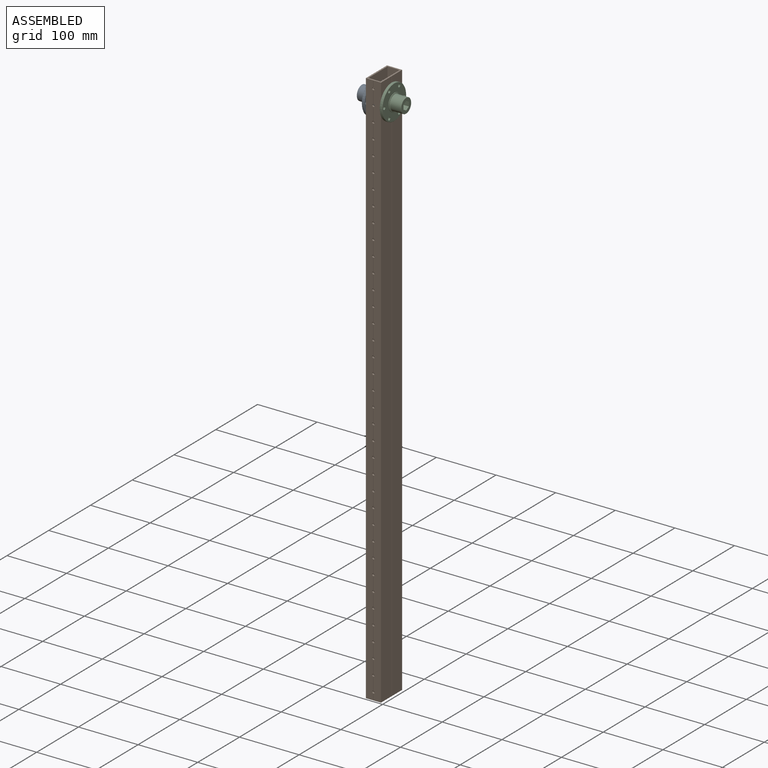
[diagram: assembled view]
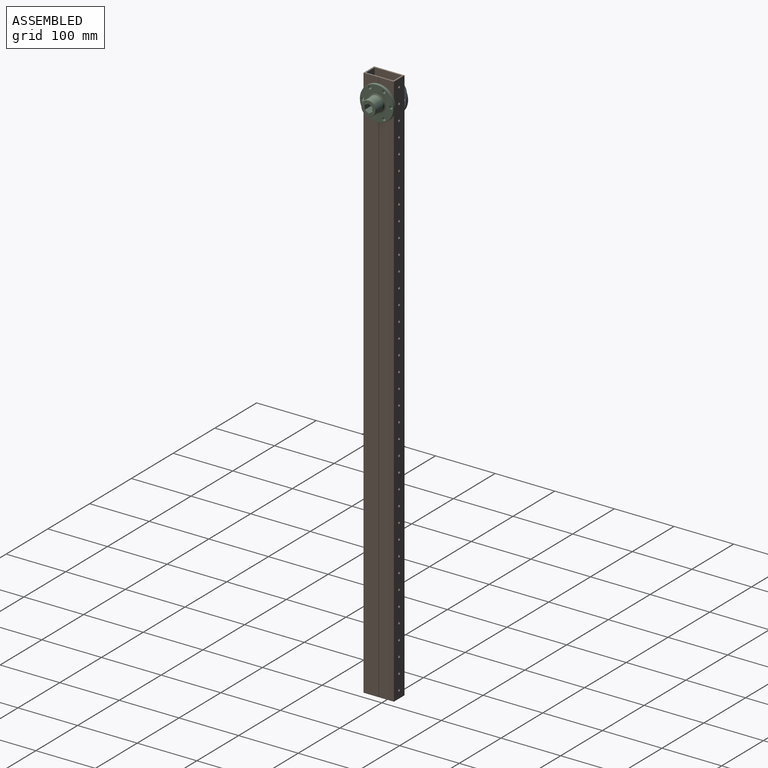
[diagram: assembled view, second angle]
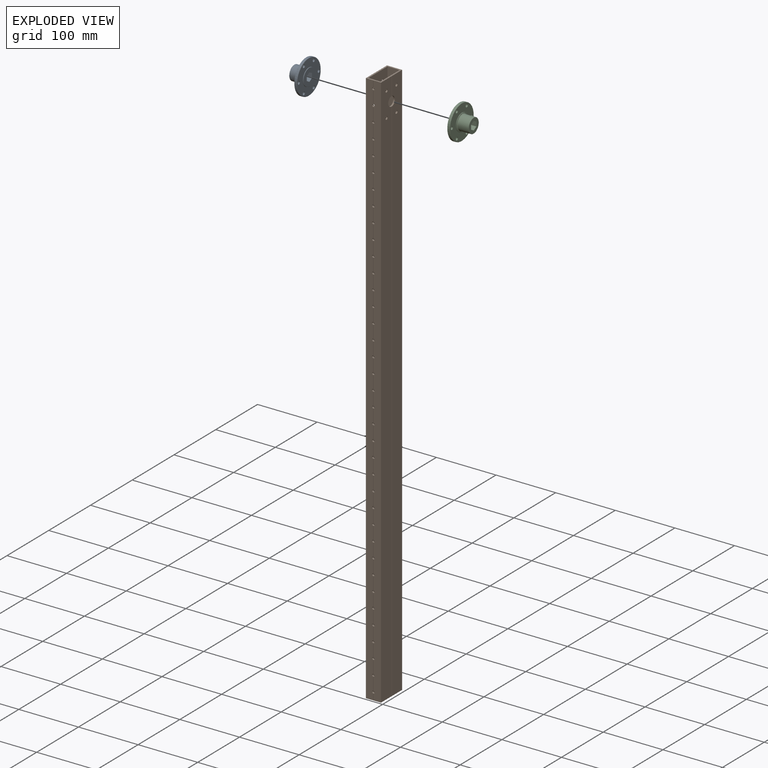
[diagram: exploded view]
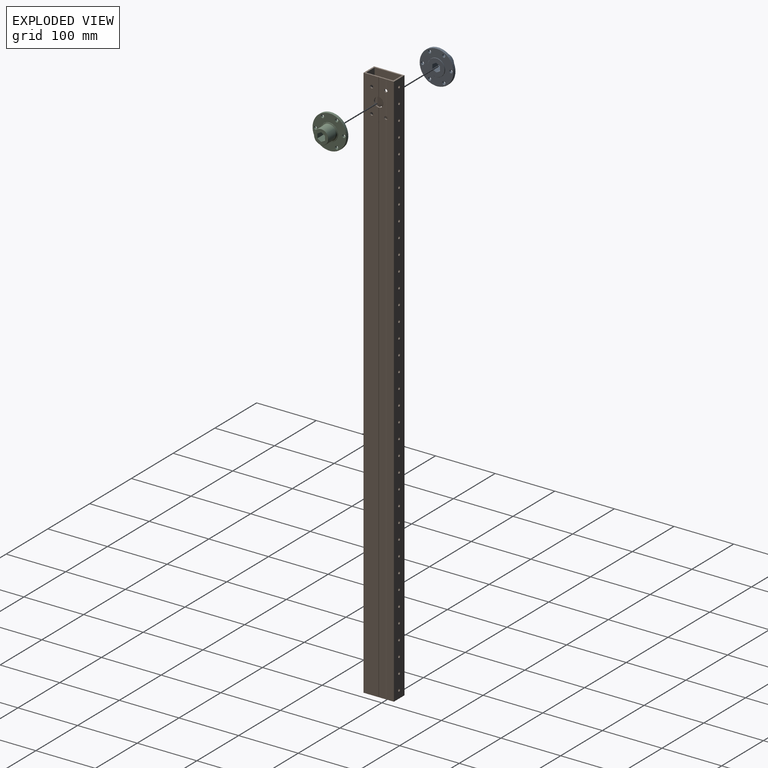
[diagram: exploded view, second angle]
ASSEMBLY  parts=3 mates=2
PART A: 27 faces, bbox 25.4x57.2x57.2 mm
  f0: cone r=11.91mm half-angle=45deg, axis (-1,0,0), area 27.2mm2, adj f8,f18
  f1: cone r=28.57mm half-angle=45deg, axis (-1,0,0), area 64.2mm2, adj f15,f25
  f2: cone r=28.32mm half-angle=45deg, axis (1,0,0), area 64.2mm2, adj f15,f26
  f3: cone r=14.29mm half-angle=45deg, axis (-1,0,0), area 32mm2, adj f7,f17
  f4: cone r=14.03mm half-angle=45deg, axis (1,0,0), area 32mm2, adj f6,f16
  f5: cone r=12.17mm half-angle=45deg, axis (-1,0,0), area 90.8mm2, adj f8,f17
  f6: cylinder r=14.29mm len=28.58mm, axis (1,0,0), area 57mm2, adj f4,f26
  f7: cylinder r=14.29mm len=28.58mm, axis (1,0,0), area 57mm2, adj f3,f25
  f8: cylinder r=12.17mm len=24.33mm, axis (-1,0,0), area 1374.7mm2, adj f0,f5
  f9: cylinder r=2.59mm len=5.18mm, axis (1,0,0), area 74.4mm2, adj f25,f26
  f10: cylinder r=2.59mm len=5.18mm, axis (1,0,0), area 74.4mm2, adj f25,f26
  f11: cylinder r=2.59mm len=5.18mm, axis (1,0,0), area 74.4mm2, adj f25,f26
  f12: cylinder r=2.59mm len=5.18mm, axis (1,0,0), area 74.4mm2, adj f25,f26
  f13: cylinder r=2.59mm len=5.18mm, axis (1,0,0), area 74.4mm2, adj f25,f26
  f14: cylinder r=2.59mm len=5.18mm, axis (1,0,0), area 74.4mm2, adj f25,f26
  f15: cylinder r=28.57mm len=57.15mm, axis (-1,0,0), area 729.7mm2, adj f1,f2
  f16: plane 28.07x28.07mm, normal (-1,0,0), area 477.9mm2, adj f4,f19,f20,f21,f22,f23,f24
  f17: plane 28.07x28.07mm, normal (1,0,0), area 89.5mm2, adj f3,f5
  f18: plane 23.83x23.83mm, normal (1,0,0), area 305mm2, adj f0,f19,f20,f21,f22,f23,f24
  f19: plane 25.4x6.38mm, normal (0,0.5,0.87), area 187mm2, adj f16,f18,f20,f24
  f20: plane 25.4x7.36mm, normal (0,1,0), area 187mm2, adj f16,f18,f19,f21
  f21: plane 25.4x6.38mm, normal (0,0.5,-0.87), area 187mm2, adj f16,f18,f20,f22
  f22: plane 25.4x6.38mm, normal (0,-0.5,-0.87), area 187mm2, adj f16,f18,f21,f23
  f23: plane 25.4x7.36mm, normal (0,-1,0), area 187mm2, adj f16,f18,f22,f24
  f24: plane 25.4x6.38mm, normal (0,-0.5,0.87), area 187mm2, adj f16,f18,f19,f23
  f25: plane 56.64x56.64mm, normal (1,0,0), area 1752mm2, adj f1,f7,f9,f10,f11,f12,f13,f14
  f26: plane 56.64x56.64mm, normal (-1,0,0), area 1752mm2, adj f2,f6,f9,f10,f11,f12,f13,f14
PART B: 290 faces, bbox 25.4x50.8x939.8 mm
  f0: plane 878.61x0.08mm, normal (-0.71,-0.71,0), area 94.7mm2, adj f25,f52,f281,f285
  f1: plane 15.01x0.08mm, normal (-0.71,0.71,0), area 1.6mm2, adj f24,f55,f278,f282
  f2: plane 939.8x12.55mm, normal (1,0,0), area 11666.1mm2, adj f8,f9,f20,f21,f47,f278,f280,f281
  f3: plane 939.8x12.55mm, normal (1,0,0), area 11666.1mm2, adj f10,f11,f22,f23,f48,f278,f280,f281
  f4: plane 939.8x12.62mm, normal (1,0,0), area 11851.6mm2, adj f6,f7,f38,f46,f278,f281,f288,f289
  f5: plane 939.8x12.62mm, normal (1,0,0), area 11851.6mm2, adj f12,f13,f36,f49,f278,f281,f286,f287
  f6: plane 878.64x0.08mm, normal (0.71,-0.71,0), area 94.7mm2, adj f4,f47,f281,f289
  f7: plane 36.36x0.08mm, normal (0.71,-0.71,0), area 3.9mm2, adj f4,f8,f288,f289
  f8: plane 36.31x0.08mm, normal (0.71,0.71,0), area 3.9mm2, adj f2,f7,f288,f289
  f9: plane 15.01x0.08mm, normal (0.71,0.71,0), area 1.6mm2, adj f2,f46,f278,f288
  f10: plane 36.31x0.08mm, normal (0.71,-0.71,0), area 3.9mm2, adj f3,f13,f286,f287
  f11: plane 878.61x0.08mm, normal (0.71,-0.71,0), area 94.7mm2, adj f3,f49,f281,f286
  f12: plane 15.04x0.08mm, normal (0.71,0.71,0), area 1.6mm2, adj f5,f48,f278,f287
  f13: plane 36.36x0.08mm, normal (0.71,0.71,0), area 3.9mm2, adj f5,f10,f286,f287
  f14: plane 15.04x0.08mm, normal (-0.71,0.71,0), area 1.6mm2, adj f33,f53,f278,f284
  f15: plane 36.36x0.08mm, normal (-0.71,0.71,0), area 3.9mm2, adj f16,f30,f33,f284,f285
  f16: plane 18.16x0.08mm, normal (-0.71,-0.71,0), area 1.9mm2, adj f15,f34,f279,f284
  f17: plane 18.16x0.08mm, normal (-0.71,0.71,0), area 1.9mm2, adj f19,f32,f279,f283
  f18: plane 878.64x0.08mm, normal (-0.71,-0.71,0), area 94.7mm2, adj f35,f54,f281,f283
  f19: plane 36.36x0.08mm, normal (-0.71,-0.71,0), area 3.9mm2, adj f17,f31,f35,f282,f283
  f20: plane 30.16x0.08mm, normal (0.71,-0.71,0), area 3.3mm2, adj f2,f23,f278,f280
  f21: plane 893.76x0.08mm, normal (0.71,-0.71,0), area 96.3mm2, adj f2,f22,f280,f281
  f22: plane 893.76x0.08mm, normal (0.71,0.71,0), area 96.3mm2, adj f3,f21,f280,f281
  f23: plane 30.16x0.08mm, normal (0.71,0.71,0), area 3.3mm2, adj f3,f20,f278,f280
  f24: plane 36.71x12.55mm, normal (-1,0,0), area 338.2mm2, adj f1,f29,f31,f278,f279,f282
  f25: plane 900.31x12.55mm, normal (-1,0,0), area 11174.3mm2, adj f0,f27,f30,f279,f281,f285
  f26: plane 25.4x0.08mm, normal (-0.71,0.71,0), area 2.7mm2, adj f29,f34,f278,f279
  f27: plane 889x0.08mm, normal (-0.71,0.71,0), area 95.8mm2, adj f25,f28,f279,f281
  f28: plane 889x0.08mm, normal (-0.71,-0.71,0), area 95.8mm2, adj f27,f32,f279,f281
  f29: plane 25.4x0.08mm, normal (-0.71,-0.71,0), area 2.7mm2, adj f24,f26,f278,f279
  f30: plane 18.16x0.08mm, normal (-0.71,-0.71,0), area 1.9mm2, adj f15,f25,f279,f285
  f31: plane 18.16x0.08mm, normal (-0.71,0.71,0), area 1.9mm2, adj f19,f24,f279,f282
  f32: plane 900.31x12.55mm, normal (-1,0,0), area 11174.3mm2, adj f17,f28,f54,f279,f281,f283
  f33: plane 939.8x12.62mm, normal (-1,0,0), area 11851.6mm2, adj f14,f15,f39,f52,f278,f281,f284,f285
  f34: plane 36.71x12.55mm, normal (-1,0,0), area 338.2mm2, adj f16,f26,f53,f278,f279,f284
  f35: plane 939.8x12.62mm, normal (-1,0,0), area 11851.6mm2, adj f18,f19,f37,f55,f278,f281,f282,f283
  f36: plane 939.8x12.62mm, normal (0,-1,0), area 11626.5mm2, adj f5,f51,f56,f57,f58,f59,f60,f61
  f37: plane 939.8x12.62mm, normal (0,1,0), area 11626.5mm2, adj f35,f45,f93,f94,f95,f96,f97,f98
  f38: plane 939.8x12.62mm, normal (0,1,0), area 11626.5mm2, adj f4,f44,f93,f94,f95,f96,f97,f98
  f39: plane 939.8x12.62mm, normal (0,-1,0), area 11626.5mm2, adj f33,f50,f56,f57,f58,f59,f60,f61
  f40: plane 939.8x45.72mm, normal (-1,0,0), area 42685.4mm2, adj f41,f43,f278,f280,f281,f286,f287,f288
  f41: plane 939.8x20.32mm, normal (0,-1,0), area 18598.6mm2, adj f40,f42,f93,f94,f95,f96,f97,f98
  f42: plane 939.8x45.72mm, normal (1,0,0), area 42376.6mm2, adj f41,f43,f278,f279,f281,f282,f283,f284
  f43: plane 939.8x20.32mm, normal (0,1,0), area 18598.6mm2, adj f40,f42,f56,f57,f58,f59,f60,f61
  f44: plane 10.63x0.08mm, normal (-0.71,0.71,0), area 1.1mm2, adj f38,f45,f93,f278
  f45: plane 10.63x0.08mm, normal (0.71,0.71,0), area 1.1mm2, adj f37,f44,f93,f278
  f46: plane 15.04x0.08mm, normal (0.71,-0.71,0), area 1.6mm2, adj f4,f9,f278,f288
  f47: plane 878.61x0.08mm, normal (0.71,0.71,0), area 94.7mm2, adj f2,f6,f281,f289
  f48: plane 15.01x0.08mm, normal (0.71,-0.71,0), area 1.6mm2, adj f3,f12,f278,f287
  f49: plane 878.64x0.08mm, normal (0.71,0.71,0), area 94.7mm2, adj f5,f11,f281,f286
  f50: plane 10.63x0.08mm, normal (0.71,-0.71,0), area 1.1mm2, adj f39,f51,f56,f278
  f51: plane 10.63x0.08mm, normal (-0.71,-0.71,0), area 1.1mm2, adj f36,f50,f56,f278
  f52: plane 878.64x0.08mm, normal (-0.71,0.71,0), area 94.7mm2, adj f0,f33,f281,f285
  f53: plane 15.01x0.08mm, normal (-0.71,-0.71,0), area 1.6mm2, adj f14,f34,f278,f284
  f54: plane 878.61x0.08mm, normal (-0.71,0.71,0), area 94.7mm2, adj f18,f32,f281,f283
  f55: plane 15.04x0.08mm, normal (-0.71,-0.71,0), area 1.6mm2, adj f1,f35,f278,f282
  f56: cylinder r=2.07mm len=4.14mm, axis (0,1,0), area 33mm2, adj f36,f39,f43,f50,f51,f204,f205
  f57: cylinder r=2.07mm len=4.14mm, axis (0,1,0), area 33mm2, adj f36,f39,f43,f204,f205,f206,f207
  f58: cylinder r=2.07mm len=4.14mm, axis (0,1,0), area 33mm2, adj f36,f39,f43,f206,f207,f208,f209
  f59: cylinder r=2.07mm len=4.14mm, axis (0,1,0), area 33mm2, adj f36,f39,f43,f208,f209,f210,f211
  f60: cylinder r=2.07mm len=4.14mm, axis (0,1,0), area 33mm2, adj f36,f39,f43,f210,f211,f212,f213
  f61: cylinder r=2.07mm len=4.14mm, axis (0,1,0), area 33mm2, adj f36,f39,f43,f212,f213,f214,f215
  f62: cylinder r=2.07mm len=4.14mm, axis (0,1,0), area 33mm2, adj f36,f39,f43,f214,f215,f216,f217
  f63: cylinder r=2.07mm len=4.14mm, axis (0,1,0), area 33mm2, adj f36,f39,f43,f216,f217,f218,f219
  f64: cylinder r=2.07mm len=4.14mm, axis (0,1,0), area 33mm2, adj f36,f39,f43,f218,f219,f220,f221
  f65: cylinder r=2.07mm len=4.14mm, axis (0,1,0), area 33mm2, adj f36,f39,f43,f220,f221,f222,f223
  f66: cylinder r=2.07mm len=4.14mm, axis (0,1,0), area 33mm2, adj f36,f39,f43,f222,f223,f224,f225
  f67: cylinder r=2.07mm len=4.14mm, axis (0,1,0), area 33mm2, adj f36,f39,f43,f224,f225,f226,f227
  f68: cylinder r=2.07mm len=4.14mm, axis (0,1,0), area 33mm2, adj f36,f39,f43,f226,f227,f228,f229
  f69: cylinder r=2.07mm len=4.14mm, axis (0,1,0), area 33mm2, adj f36,f39,f43,f228,f229,f230,f231
  f70: cylinder r=2.07mm len=4.14mm, axis (0,1,0), area 33mm2, adj f36,f39,f43,f230,f231,f232,f233
  f71: cylinder r=2.07mm len=4.14mm, axis (0,1,0), area 33mm2, adj f36,f39,f43,f232,f233,f234,f235
  f72: cylinder r=2.07mm len=4.14mm, axis (0,1,0), area 33mm2, adj f36,f39,f43,f234,f235,f236,f237
  f73: cylinder r=2.07mm len=4.14mm, axis (0,1,0), area 33mm2, adj f36,f39,f43,f236,f237,f238,f239
  f74: cylinder r=2.07mm len=4.14mm, axis (0,1,0), area 33mm2, adj f36,f39,f43,f238,f239,f240,f241
  f75: cylinder r=2.07mm len=4.14mm, axis (0,1,0), area 33mm2, adj f36,f39,f43,f240,f241,f242,f243
  f76: cylinder r=2.07mm len=4.14mm, axis (0,1,0), area 33mm2, adj f36,f39,f43,f242,f243,f244,f245
  f77: cylinder r=2.07mm len=4.14mm, axis (0,1,0), area 33mm2, adj f36,f39,f43,f244,f245,f246,f247
  f78: cylinder r=2.07mm len=4.14mm, axis (0,1,0), area 33mm2, adj f36,f39,f43,f246,f247,f248,f249
  f79: cylinder r=2.07mm len=4.14mm, axis (0,1,0), area 33mm2, adj f36,f39,f43,f248,f249,f250,f251
  f80: cylinder r=2.07mm len=4.14mm, axis (0,1,0), area 33mm2, adj f36,f39,f43,f250,f251,f252,f253
  f81: cylinder r=2.07mm len=4.14mm, axis (0,1,0), area 33mm2, adj f36,f39,f43,f252,f253,f254,f255
  f82: cylinder r=2.07mm len=4.14mm, axis (0,1,0), area 33mm2, adj f36,f39,f43,f254,f255,f256,f257
  f83: cylinder r=2.07mm len=4.14mm, axis (0,1,0), area 33mm2, adj f36,f39,f43,f256,f257,f258,f259
  f84: cylinder r=2.07mm len=4.14mm, axis (0,1,0), area 33mm2, adj f36,f39,f43,f258,f259,f260,f261
  f85: cylinder r=2.07mm len=4.14mm, axis (0,1,0), area 33mm2, adj f36,f39,f43,f260,f261,f262,f263
  f86: cylinder r=2.07mm len=4.14mm, axis (0,1,0), area 33mm2, adj f36,f39,f43,f262,f263,f264,f265
  f87: cylinder r=2.07mm len=4.14mm, axis (0,1,0), area 33mm2, adj f36,f39,f43,f264,f265,f266,f267
  f88: cylinder r=2.07mm len=4.14mm, axis (0,1,0), area 33mm2, adj f36,f39,f43,f266,f267,f268,f269
  f89: cylinder r=2.07mm len=4.14mm, axis (0,1,0), area 33mm2, adj f36,f39,f43,f268,f269,f270,f271
  f90: cylinder r=2.07mm len=4.14mm, axis (0,1,0), area 33mm2, adj f36,f39,f43,f270,f271,f272,f273
  f91: cylinder r=2.07mm len=4.14mm, axis (0,1,0), area 33mm2, adj f36,f39,f43,f272,f273,f274,f275
  f92: cylinder r=2.07mm len=4.14mm, axis (0,1,0), area 33mm2, adj f36,f39,f43,f274,f275,f276,f277
  f93: cylinder r=2.07mm len=4.14mm, axis (0,1,0), area 33mm2, adj f37,f38,f41,f44,f45,f130,f131
  f94: cylinder r=2.07mm len=4.14mm, axis (0,1,0), area 33mm2, adj f37,f38,f41,f130,f131,f132,f133
  f95: cylinder r=2.07mm len=4.14mm, axis (0,1,0), area 33mm2, adj f37,f38,f41,f132,f133,f134,f135
  f96: cylinder r=2.07mm len=4.14mm, axis (0,1,0), area 33mm2, adj f37,f38,f41,f134,f135,f136,f137
  f97: cylinder r=2.07mm len=4.14mm, axis (0,1,0), area 33mm2, adj f37,f38,f41,f136,f137,f138,f139
  f98: cylinder r=2.07mm len=4.14mm, axis (0,1,0), area 33mm2, adj f37,f38,f41,f138,f139,f140,f141
  f99: cylinder r=2.07mm len=4.14mm, axis (0,1,0), area 33mm2, adj f37,f38,f41,f140,f141,f142,f143
  f100: cylinder r=2.07mm len=4.14mm, axis (0,1,0), area 33mm2, adj f37,f38,f41,f142,f143,f144,f145
  f101: cylinder r=2.07mm len=4.14mm, axis (0,1,0), area 33mm2, adj f37,f38,f41,f144,f145,f146,f147
  f102: cylinder r=2.07mm len=4.14mm, axis (0,1,0), area 33mm2, adj f37,f38,f41,f146,f147,f148,f149
  f103: cylinder r=2.07mm len=4.14mm, axis (0,1,0), area 33mm2, adj f37,f38,f41,f148,f149,f150,f151
  f104: cylinder r=2.07mm len=4.14mm, axis (0,1,0), area 33mm2, adj f37,f38,f41,f150,f151,f152,f153
  f105: cylinder r=2.07mm len=4.14mm, axis (0,1,0), area 33mm2, adj f37,f38,f41,f152,f153,f154,f155
  f106: cylinder r=2.07mm len=4.14mm, axis (0,1,0), area 33mm2, adj f37,f38,f41,f154,f155,f156,f157
  f107: cylinder r=2.07mm len=4.14mm, axis (0,1,0), area 33mm2, adj f37,f38,f41,f156,f157,f158,f159
  f108: cylinder r=2.07mm len=4.14mm, axis (0,1,0), area 33mm2, adj f37,f38,f41,f158,f159,f160,f161
  f109: cylinder r=2.07mm len=4.14mm, axis (0,1,0), area 33mm2, adj f37,f38,f41,f160,f161,f162,f163
  f110: cylinder r=2.07mm len=4.14mm, axis (0,1,0), area 33mm2, adj f37,f38,f41,f162,f163,f164,f165
  f111: cylinder r=2.07mm len=4.14mm, axis (0,1,0), area 33mm2, adj f37,f38,f41,f164,f165,f166,f167
  f112: cylinder r=2.07mm len=4.14mm, axis (0,1,0), area 33mm2, adj f37,f38,f41,f166,f167,f168,f169
  f113: cylinder r=2.07mm len=4.14mm, axis (0,1,0), area 33mm2, adj f37,f38,f41,f168,f169,f170,f171
  f114: cylinder r=2.07mm len=4.14mm, axis (0,1,0), area 33mm2, adj f37,f38,f41,f170,f171,f172,f173
  f115: cylinder r=2.07mm len=4.14mm, axis (0,1,0), area 33mm2, adj f37,f38,f41,f172,f173,f174,f175
  f116: cylinder r=2.07mm len=4.14mm, axis (0,1,0), area 33mm2, adj f37,f38,f41,f174,f175,f176,f177
  f117: cylinder r=2.07mm len=4.14mm, axis (0,1,0), area 33mm2, adj f37,f38,f41,f176,f177,f178,f179
  f118: cylinder r=2.07mm len=4.14mm, axis (0,1,0), area 33mm2, adj f37,f38,f41,f178,f179,f180,f181
  f119: cylinder r=2.07mm len=4.14mm, axis (0,1,0), area 33mm2, adj f37,f38,f41,f180,f181,f182,f183
  f120: cylinder r=2.07mm len=4.14mm, axis (0,1,0), area 33mm2, adj f37,f38,f41,f182,f183,f184,f185
  f121: cylinder r=2.07mm len=4.14mm, axis (0,1,0), area 33mm2, adj f37,f38,f41,f184,f185,f186,f187
  f122: cylinder r=2.07mm len=4.14mm, axis (0,1,0), area 33mm2, adj f37,f38,f41,f186,f187,f188,f189
  f123: cylinder r=2.07mm len=4.14mm, axis (0,1,0), area 33mm2, adj f37,f38,f41,f188,f189,f190,f191
  f124: cylinder r=2.07mm len=4.14mm, axis (0,1,0), area 33mm2, adj f37,f38,f41,f190,f191,f192,f193
  f125: cylinder r=2.07mm len=4.14mm, axis (0,1,0), area 33mm2, adj f37,f38,f41,f192,f193,f194,f195
  f126: cylinder r=2.07mm len=4.14mm, axis (0,1,0), area 33mm2, adj f37,f38,f41,f194,f195,f196,f197
  f127: cylinder r=2.07mm len=4.14mm, axis (0,1,0), area 33mm2, adj f37,f38,f41,f196,f197,f198,f199
  f128: cylinder r=2.07mm len=4.14mm, axis (0,1,0), area 33mm2, adj f37,f38,f41,f198,f199,f200,f201
  f129: cylinder r=2.07mm len=4.14mm, axis (0,1,0), area 33mm2, adj f37,f38,f41,f200,f201,f202,f203
  f130: plane 21.26x0.08mm, normal (-0.71,0.71,0), area 2.3mm2, adj f38,f93,f94,f131
  f131: plane 21.26x0.08mm, normal (0.71,0.71,0), area 2.3mm2, adj f37,f93,f94,f130
  f132: plane 21.26x0.08mm, normal (-0.71,0.71,0), area 2.3mm2, adj f38,f94,f95,f133
  f133: plane 21.26x0.08mm, normal (0.71,0.71,0), area 2.3mm2, adj f37,f94,f95,f132
  f134: plane 21.26x0.08mm, normal (-0.71,0.71,0), area 2.3mm2, adj f38,f95,f96,f135
  f135: plane 21.26x0.08mm, normal (0.71,0.71,0), area 2.3mm2, adj f37,f95,f96,f134
  f136: plane 21.26x0.08mm, normal (-0.71,0.71,0), area 2.3mm2, adj f38,f96,f97,f137
  f137: plane 21.26x0.08mm, normal (0.71,0.71,0), area 2.3mm2, adj f37,f96,f97,f136
  f138: plane 21.26x0.08mm, normal (-0.71,0.71,0), area 2.3mm2, adj f38,f97,f98,f139
  f139: plane 21.26x0.08mm, normal (0.71,0.71,0), area 2.3mm2, adj f37,f97,f98,f138
  f140: plane 21.26x0.08mm, normal (-0.71,0.71,0), area 2.3mm2, adj f38,f98,f99,f141
  f141: plane 21.26x0.08mm, normal (0.71,0.71,0), area 2.3mm2, adj f37,f98,f99,f140
  f142: plane 21.26x0.08mm, normal (-0.71,0.71,0), area 2.3mm2, adj f38,f99,f100,f143
  f143: plane 21.26x0.08mm, normal (0.71,0.71,0), area 2.3mm2, adj f37,f99,f100,f142
  f144: plane 21.26x0.08mm, normal (-0.71,0.71,0), area 2.3mm2, adj f38,f100,f101,f145
  f145: plane 21.26x0.08mm, normal (0.71,0.71,0), area 2.3mm2, adj f37,f100,f101,f144
  f146: plane 21.26x0.08mm, normal (-0.71,0.71,0), area 2.3mm2, adj f38,f101,f102,f147
  f147: plane 21.26x0.08mm, normal (0.71,0.71,0), area 2.3mm2, adj f37,f101,f102,f146
  f148: plane 21.26x0.08mm, normal (-0.71,0.71,0), area 2.3mm2, adj f38,f102,f103,f149
  f149: plane 21.26x0.08mm, normal (0.71,0.71,0), area 2.3mm2, adj f37,f102,f103,f148
  f150: plane 21.26x0.08mm, normal (-0.71,0.71,0), area 2.3mm2, adj f38,f103,f104,f151
  f151: plane 21.26x0.08mm, normal (0.71,0.71,0), area 2.3mm2, adj f37,f103,f104,f150
  f152: plane 21.26x0.08mm, normal (-0.71,0.71,0), area 2.3mm2, adj f38,f104,f105,f153
  f153: plane 21.26x0.08mm, normal (0.71,0.71,0), area 2.3mm2, adj f37,f104,f105,f152
  f154: plane 21.26x0.08mm, normal (-0.71,0.71,0), area 2.3mm2, adj f38,f105,f106,f155
  f155: plane 21.26x0.08mm, normal (0.71,0.71,0), area 2.3mm2, adj f37,f105,f106,f154
  f156: plane 21.26x0.08mm, normal (-0.71,0.71,0), area 2.3mm2, adj f38,f106,f107,f157
  f157: plane 21.26x0.08mm, normal (0.71,0.71,0), area 2.3mm2, adj f37,f106,f107,f156
  f158: plane 21.26x0.08mm, normal (-0.71,0.71,0), area 2.3mm2, adj f38,f107,f108,f159
  f159: plane 21.26x0.08mm, normal (0.71,0.71,0), area 2.3mm2, adj f37,f107,f108,f158
  f160: plane 21.26x0.08mm, normal (-0.71,0.71,0), area 2.3mm2, adj f38,f108,f109,f161
  f161: plane 21.26x0.08mm, normal (0.71,0.71,0), area 2.3mm2, adj f37,f108,f109,f160
  f162: plane 21.26x0.08mm, normal (-0.71,0.71,0), area 2.3mm2, adj f38,f109,f110,f163
  f163: plane 21.26x0.08mm, normal (0.71,0.71,0), area 2.3mm2, adj f37,f109,f110,f162
  f164: plane 21.26x0.08mm, normal (-0.71,0.71,0), area 2.3mm2, adj f38,f110,f111,f165
  f165: plane 21.26x0.08mm, normal (0.71,0.71,0), area 2.3mm2, adj f37,f110,f111,f164
  f166: plane 21.26x0.08mm, normal (-0.71,0.71,0), area 2.3mm2, adj f38,f111,f112,f167
  f167: plane 21.26x0.08mm, normal (0.71,0.71,0), area 2.3mm2, adj f37,f111,f112,f166
  f168: plane 21.26x0.08mm, normal (-0.71,0.71,0), area 2.3mm2, adj f38,f112,f113,f169
  f169: plane 21.26x0.08mm, normal (0.71,0.71,0), area 2.3mm2, adj f37,f112,f113,f168
  f170: plane 21.26x0.08mm, normal (-0.71,0.71,0), area 2.3mm2, adj f38,f113,f114,f171
  f171: plane 21.26x0.08mm, normal (0.71,0.71,0), area 2.3mm2, adj f37,f113,f114,f170
  f172: plane 21.26x0.08mm, normal (-0.71,0.71,0), area 2.3mm2, adj f38,f114,f115,f173
  f173: plane 21.26x0.08mm, normal (0.71,0.71,0), area 2.3mm2, adj f37,f114,f115,f172
  f174: plane 21.26x0.08mm, normal (-0.71,0.71,0), area 2.3mm2, adj f38,f115,f116,f175
  f175: plane 21.26x0.08mm, normal (0.71,0.71,0), area 2.3mm2, adj f37,f115,f116,f174
  f176: plane 21.26x0.08mm, normal (-0.71,0.71,0), area 2.3mm2, adj f38,f116,f117,f177
  f177: plane 21.26x0.08mm, normal (0.71,0.71,0), area 2.3mm2, adj f37,f116,f117,f176
  f178: plane 21.26x0.08mm, normal (-0.71,0.71,0), area 2.3mm2, adj f38,f117,f118,f179
  f179: plane 21.26x0.08mm, normal (0.71,0.71,0), area 2.3mm2, adj f37,f117,f118,f178
  f180: plane 21.26x0.08mm, normal (-0.71,0.71,0), area 2.3mm2, adj f38,f118,f119,f181
  f181: plane 21.26x0.08mm, normal (0.71,0.71,0), area 2.3mm2, adj f37,f118,f119,f180
  f182: plane 21.26x0.08mm, normal (-0.71,0.71,0), area 2.3mm2, adj f38,f119,f120,f183
  f183: plane 21.26x0.08mm, normal (0.71,0.71,0), area 2.3mm2, adj f37,f119,f120,f182
  f184: plane 21.26x0.08mm, normal (-0.71,0.71,0), area 2.3mm2, adj f38,f120,f121,f185
  f185: plane 21.26x0.08mm, normal (0.71,0.71,0), area 2.3mm2, adj f37,f120,f121,f184
  f186: plane 21.26x0.08mm, normal (-0.71,0.71,0), area 2.3mm2, adj f38,f121,f122,f187
  f187: plane 21.26x0.08mm, normal (0.71,0.71,0), area 2.3mm2, adj f37,f121,f122,f186
  f188: plane 21.26x0.08mm, normal (-0.71,0.71,0), area 2.3mm2, adj f38,f122,f123,f189
  f189: plane 21.26x0.08mm, normal (0.71,0.71,0), area 2.3mm2, adj f37,f122,f123,f188
  f190: plane 21.26x0.08mm, normal (-0.71,0.71,0), area 2.3mm2, adj f38,f123,f124,f191
  f191: plane 21.26x0.08mm, normal (0.71,0.71,0), area 2.3mm2, adj f37,f123,f124,f190
  f192: plane 21.26x0.08mm, normal (-0.71,0.71,0), area 2.3mm2, adj f38,f124,f125,f193
  f193: plane 21.26x0.08mm, normal (0.71,0.71,0), area 2.3mm2, adj f37,f124,f125,f192
  f194: plane 21.26x0.08mm, normal (-0.71,0.71,0), area 2.3mm2, adj f38,f125,f126,f195
  f195: plane 21.26x0.08mm, normal (0.71,0.71,0), area 2.3mm2, adj f37,f125,f126,f194
  f196: plane 21.26x0.08mm, normal (-0.71,0.71,0), area 2.3mm2, adj f38,f126,f127,f197
  f197: plane 21.26x0.08mm, normal (0.71,0.71,0), area 2.3mm2, adj f37,f126,f127,f196
  f198: plane 21.26x0.08mm, normal (-0.71,0.71,0), area 2.3mm2, adj f38,f127,f128,f199
  f199: plane 21.26x0.08mm, normal (0.71,0.71,0), area 2.3mm2, adj f37,f127,f128,f198
  f200: plane 21.26x0.08mm, normal (-0.71,0.71,0), area 2.3mm2, adj f38,f128,f129,f201
  f201: plane 21.26x0.08mm, normal (0.71,0.71,0), area 2.3mm2, adj f37,f128,f129,f200
  f202: plane 10.63x0.08mm, normal (-0.71,0.71,0), area 1.1mm2, adj f38,f129,f203,f281
  f203: plane 10.63x0.08mm, normal (0.71,0.71,0), area 1.1mm2, adj f37,f129,f202,f281
  f204: plane 21.26x0.08mm, normal (0.71,-0.71,0), area 2.3mm2, adj f39,f56,f57,f205
  f205: plane 21.26x0.08mm, normal (-0.71,-0.71,0), area 2.3mm2, adj f36,f56,f57,f204
  f206: plane 21.26x0.08mm, normal (0.71,-0.71,0), area 2.3mm2, adj f39,f57,f58,f207
  f207: plane 21.26x0.08mm, normal (-0.71,-0.71,0), area 2.3mm2, adj f36,f57,f58,f206
  f208: plane 21.26x0.08mm, normal (0.71,-0.71,0), area 2.3mm2, adj f39,f58,f59,f209
  f209: plane 21.26x0.08mm, normal (-0.71,-0.71,0), area 2.3mm2, adj f36,f58,f59,f208
  f210: plane 21.26x0.08mm, normal (0.71,-0.71,0), area 2.3mm2, adj f39,f59,f60,f211
  f211: plane 21.26x0.08mm, normal (-0.71,-0.71,0), area 2.3mm2, adj f36,f59,f60,f210
  f212: plane 21.26x0.08mm, normal (0.71,-0.71,0), area 2.3mm2, adj f39,f60,f61,f213
  f213: plane 21.26x0.08mm, normal (-0.71,-0.71,0), area 2.3mm2, adj f36,f60,f61,f212
  f214: plane 21.26x0.08mm, normal (0.71,-0.71,0), area 2.3mm2, adj f39,f61,f62,f215
  f215: plane 21.26x0.08mm, normal (-0.71,-0.71,0), area 2.3mm2, adj f36,f61,f62,f214
  f216: plane 21.26x0.08mm, normal (0.71,-0.71,0), area 2.3mm2, adj f39,f62,f63,f217
  f217: plane 21.26x0.08mm, normal (-0.71,-0.71,0), area 2.3mm2, adj f36,f62,f63,f216
  f218: plane 21.26x0.08mm, normal (0.71,-0.71,0), area 2.3mm2, adj f39,f63,f64,f219
  f219: plane 21.26x0.08mm, normal (-0.71,-0.71,0), area 2.3mm2, adj f36,f63,f64,f218
  f220: plane 21.26x0.08mm, normal (0.71,-0.71,0), area 2.3mm2, adj f39,f64,f65,f221
  f221: plane 21.26x0.08mm, normal (-0.71,-0.71,0), area 2.3mm2, adj f36,f64,f65,f220
  f222: plane 21.26x0.08mm, normal (0.71,-0.71,0), area 2.3mm2, adj f39,f65,f66,f223
  f223: plane 21.26x0.08mm, normal (-0.71,-0.71,0), area 2.3mm2, adj f36,f65,f66,f222
  f224: plane 21.26x0.08mm, normal (0.71,-0.71,0), area 2.3mm2, adj f39,f66,f67,f225
  f225: plane 21.26x0.08mm, normal (-0.71,-0.71,0), area 2.3mm2, adj f36,f66,f67,f224
  f226: plane 21.26x0.08mm, normal (0.71,-0.71,0), area 2.3mm2, adj f39,f67,f68,f227
  f227: plane 21.26x0.08mm, normal (-0.71,-0.71,0), area 2.3mm2, adj f36,f67,f68,f226
  f228: plane 21.26x0.08mm, normal (0.71,-0.71,0), area 2.3mm2, adj f39,f68,f69,f229
  f229: plane 21.26x0.08mm, normal (-0.71,-0.71,0), area 2.3mm2, adj f36,f68,f69,f228
  f230: plane 21.26x0.08mm, normal (0.71,-0.71,0), area 2.3mm2, adj f39,f69,f70,f231
  f231: plane 21.26x0.08mm, normal (-0.71,-0.71,0), area 2.3mm2, adj f36,f69,f70,f230
  f232: plane 21.26x0.08mm, normal (0.71,-0.71,0), area 2.3mm2, adj f39,f70,f71,f233
  f233: plane 21.26x0.08mm, normal (-0.71,-0.71,0), area 2.3mm2, adj f36,f70,f71,f232
  f234: plane 21.26x0.08mm, normal (0.71,-0.71,0), area 2.3mm2, adj f39,f71,f72,f235
  f235: plane 21.26x0.08mm, normal (-0.71,-0.71,0), area 2.3mm2, adj f36,f71,f72,f234
  f236: plane 21.26x0.08mm, normal (0.71,-0.71,0), area 2.3mm2, adj f39,f72,f73,f237
  f237: plane 21.26x0.08mm, normal (-0.71,-0.71,0), area 2.3mm2, adj f36,f72,f73,f236
  f238: plane 21.26x0.08mm, normal (0.71,-0.71,0), area 2.3mm2, adj f39,f73,f74,f239
  f239: plane 21.26x0.08mm, normal (-0.71,-0.71,0), area 2.3mm2, adj f36,f73,f74,f238
  f240: plane 21.26x0.08mm, normal (0.71,-0.71,0), area 2.3mm2, adj f39,f74,f75,f241
  f241: plane 21.26x0.08mm, normal (-0.71,-0.71,0), area 2.3mm2, adj f36,f74,f75,f240
  f242: plane 21.26x0.08mm, normal (0.71,-0.71,0), area 2.3mm2, adj f39,f75,f76,f243
  f243: plane 21.26x0.08mm, normal (-0.71,-0.71,0), area 2.3mm2, adj f36,f75,f76,f242
  f244: plane 21.26x0.08mm, normal (0.71,-0.71,0), area 2.3mm2, adj f39,f76,f77,f245
  f245: plane 21.26x0.08mm, normal (-0.71,-0.71,0), area 2.3mm2, adj f36,f76,f77,f244
  f246: plane 21.26x0.08mm, normal (0.71,-0.71,0), area 2.3mm2, adj f39,f77,f78,f247
  f247: plane 21.26x0.08mm, normal (-0.71,-0.71,0), area 2.3mm2, adj f36,f77,f78,f246
  f248: plane 21.26x0.08mm, normal (0.71,-0.71,0), area 2.3mm2, adj f39,f78,f79,f249
  f249: plane 21.26x0.08mm, normal (-0.71,-0.71,0), area 2.3mm2, adj f36,f78,f79,f248
  f250: plane 21.26x0.08mm, normal (0.71,-0.71,0), area 2.3mm2, adj f39,f79,f80,f251
  f251: plane 21.26x0.08mm, normal (-0.71,-0.71,0), area 2.3mm2, adj f36,f79,f80,f250
  f252: plane 21.26x0.08mm, normal (0.71,-0.71,0), area 2.3mm2, adj f39,f80,f81,f253
  f253: plane 21.26x0.08mm, normal (-0.71,-0.71,0), area 2.3mm2, adj f36,f80,f81,f252
  f254: plane 21.26x0.08mm, normal (0.71,-0.71,0), area 2.3mm2, adj f39,f81,f82,f255
  f255: plane 21.26x0.08mm, normal (-0.71,-0.71,0), area 2.3mm2, adj f36,f81,f82,f254
  f256: plane 21.26x0.08mm, normal (0.71,-0.71,0), area 2.3mm2, adj f39,f82,f83,f257
  f257: plane 21.26x0.08mm, normal (-0.71,-0.71,0), area 2.3mm2, adj f36,f82,f83,f256
  f258: plane 21.26x0.08mm, normal (0.71,-0.71,0), area 2.3mm2, adj f39,f83,f84,f259
  f259: plane 21.26x0.08mm, normal (-0.71,-0.71,0), area 2.3mm2, adj f36,f83,f84,f258
  f260: plane 21.26x0.08mm, normal (0.71,-0.71,0), area 2.3mm2, adj f39,f84,f85,f261
  f261: plane 21.26x0.08mm, normal (-0.71,-0.71,0), area 2.3mm2, adj f36,f84,f85,f260
  f262: plane 21.26x0.08mm, normal (0.71,-0.71,0), area 2.3mm2, adj f39,f85,f86,f263
  f263: plane 21.26x0.08mm, normal (-0.71,-0.71,0), area 2.3mm2, adj f36,f85,f86,f262
  f264: plane 21.26x0.08mm, normal (0.71,-0.71,0), area 2.3mm2, adj f39,f86,f87,f265
  f265: plane 21.26x0.08mm, normal (-0.71,-0.71,0), area 2.3mm2, adj f36,f86,f87,f264
  f266: plane 21.26x0.08mm, normal (0.71,-0.71,0), area 2.3mm2, adj f39,f87,f88,f267
  f267: plane 21.26x0.08mm, normal (-0.71,-0.71,0), area 2.3mm2, adj f36,f87,f88,f266
  f268: plane 21.26x0.08mm, normal (0.71,-0.71,0), area 2.3mm2, adj f39,f88,f89,f269
  f269: plane 21.26x0.08mm, normal (-0.71,-0.71,0), area 2.3mm2, adj f36,f88,f89,f268
  f270: plane 21.26x0.08mm, normal (0.71,-0.71,0), area 2.3mm2, adj f39,f89,f90,f271
  f271: plane 21.26x0.08mm, normal (-0.71,-0.71,0), area 2.3mm2, adj f36,f89,f90,f270
  f272: plane 21.26x0.08mm, normal (0.71,-0.71,0), area 2.3mm2, adj f39,f90,f91,f273
  f273: plane 21.26x0.08mm, normal (-0.71,-0.71,0), area 2.3mm2, adj f36,f90,f91,f272
  f274: plane 21.26x0.08mm, normal (0.71,-0.71,0), area 2.3mm2, adj f39,f91,f92,f275
  f275: plane 21.26x0.08mm, normal (-0.71,-0.71,0), area 2.3mm2, adj f36,f91,f92,f274
  f276: plane 10.63x0.08mm, normal (0.71,-0.71,0), area 1.1mm2, adj f39,f92,f277,f281
  f277: plane 10.63x0.08mm, normal (-0.71,-0.71,0), area 1.1mm2, adj f36,f92,f276,f281
  f278: plane 50.8x25.4mm, normal (0,0,1), area 361.2mm2, adj f1,f2,f3,f4,f5,f9,f12,f14
  f279: cylinder r=12.7mm len=25.4mm, axis (-1,0,0), area 202.4mm2, adj f16,f17,f24,f25,f26,f27,f28,f29
  f280: cylinder r=7.94mm len=15.88mm, axis (1,0,0), area 126.7mm2, adj f2,f3,f20,f21,f22,f23,f40
  f281: plane 50.8x25.4mm, normal (0,0,-1), area 361.2mm2, adj f0,f2,f3,f4,f5,f6,f11,f18
  f282: cylinder r=2.59mm len=5.18mm, axis (1,0,0), area 41.3mm2, adj f1,f19,f24,f31,f35,f42,f55
  f283: cylinder r=2.59mm len=5.18mm, axis (1,0,0), area 41.3mm2, adj f17,f18,f19,f32,f35,f42,f54
  f284: cylinder r=2.59mm len=5.18mm, axis (1,0,0), area 41.3mm2, adj f14,f15,f16,f33,f34,f42,f53
  f285: cylinder r=2.59mm len=5.18mm, axis (1,0,0), area 41.3mm2, adj f0,f15,f25,f30,f33,f42,f52
  f286: cylinder r=2.59mm len=5.18mm, axis (1,0,0), area 41.3mm2, adj f3,f5,f10,f11,f13,f40,f49
  f287: cylinder r=2.59mm len=5.18mm, axis (1,0,0), area 41.3mm2, adj f3,f5,f10,f12,f13,f40,f48
  f288: cylinder r=2.59mm len=5.18mm, axis (1,0,0), area 41.3mm2, adj f2,f4,f7,f8,f9,f40,f46
  f289: cylinder r=2.59mm len=5.18mm, axis (1,0,0), area 41.3mm2, adj f2,f4,f6,f7,f8,f40,f47
PART C: same geometry as A
PLACE A rot(axis=(0,0,1),180deg) t=(-31.42,3.69,577.22)mm
PLACE B t=(-0.22,3.69,196.22)mm fixed
PLACE C t=(30.97,3.69,577.22)mm
MATE fastened A.f0 <-> B.f279  axis (1,0,0) through (-12.92,3.69,577.22)mm
MATE fastened C.f0 <-> B.f280  axis (-1,0,0) through (12.48,3.69,577.22)mm
